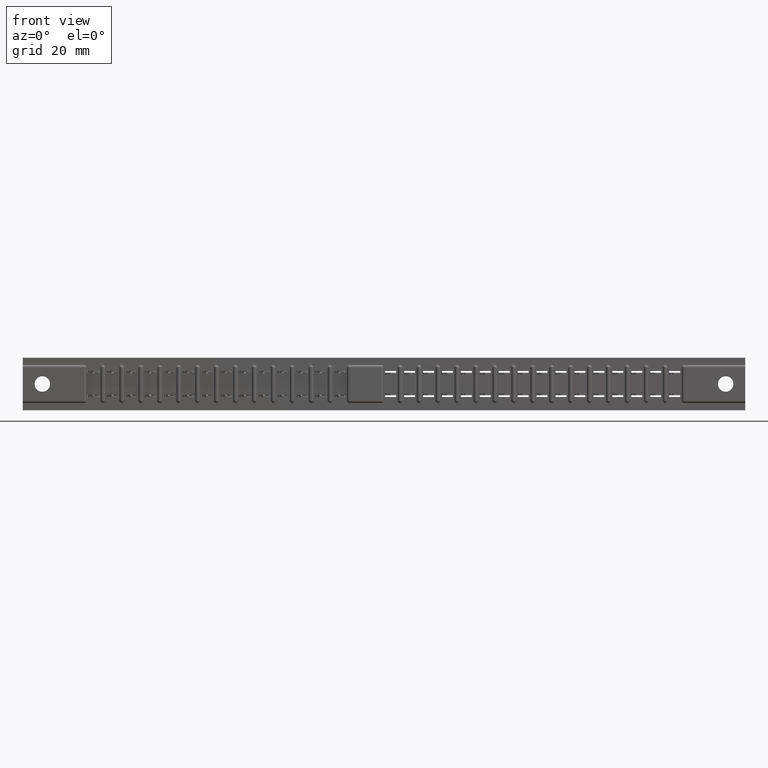
[diagram: clean part render]
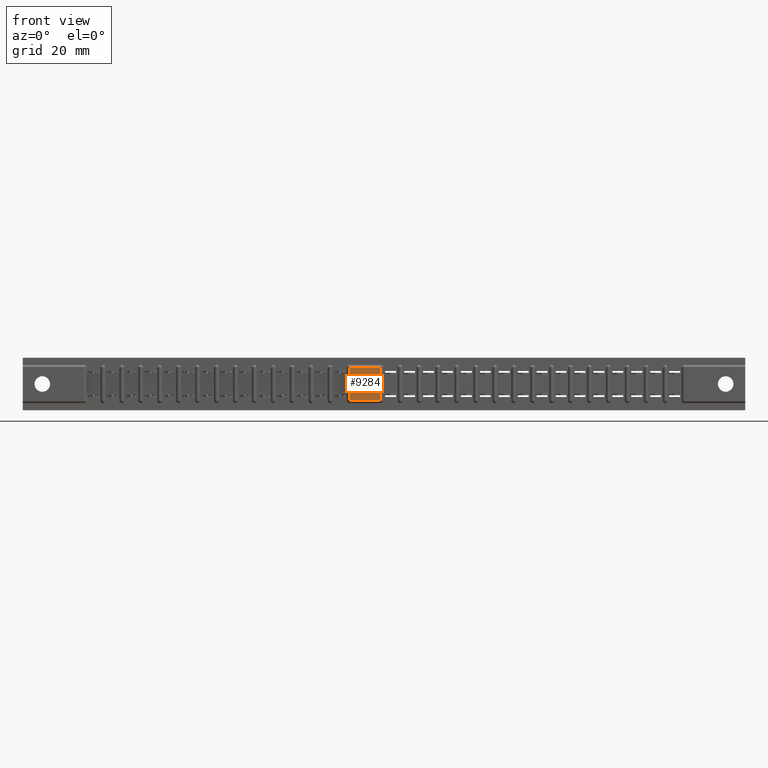
[diagram: same view with one face highlighted and labeled with its STEP entity id]
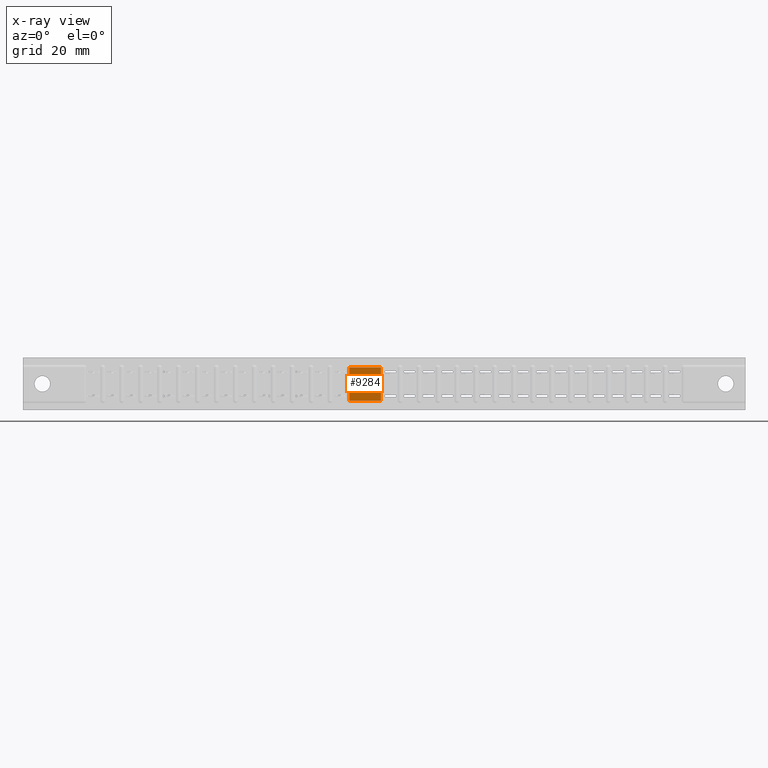
[diagram: x-ray of the same camera — body ghosted, the highlighted face saturated]
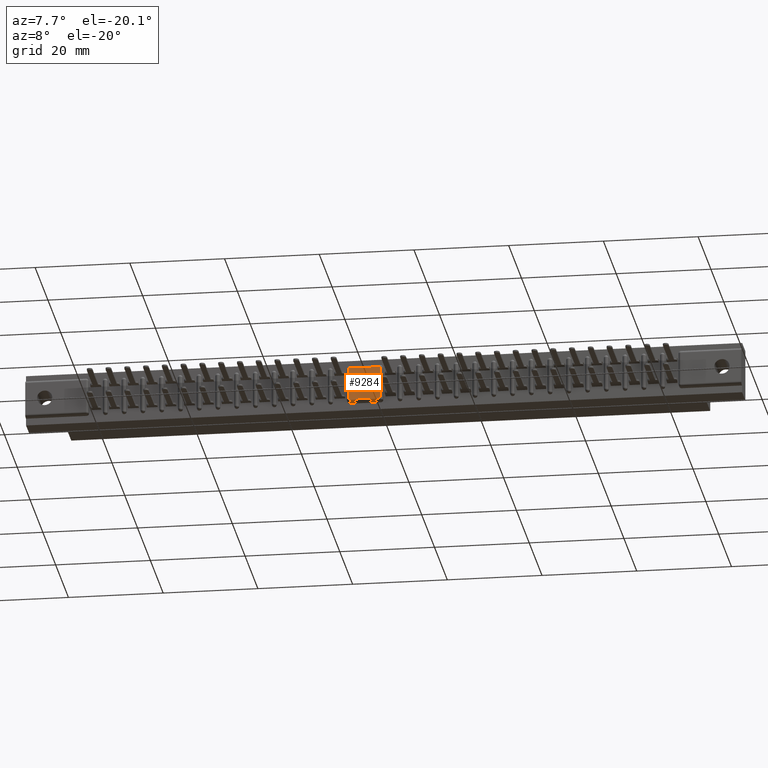
[diagram: same view with one face highlighted and labeled with its STEP entity id]
A machine part, front view. The second image highlights one B-rep face of the part: STEP entity #9284.
The next image is the same camera in x-ray: the body ghosted, the highlighted face saturated — about 0% of this face is hidden behind the body in this view.
A second angle (auxiliary view) of the same face is appended — the face is thin or edge-on in the first view.
In plain terms, the highlighted planar face has unit normal (0, -1, 0).
Its self-contained STEP definition (entity closure, byte-faithful):
#338 = VERTEX_POINT ( 'NONE', #10262 ) ;
#899 = CARTESIAN_POINT ( 'NONE',  ( -0.6603999999999774500, 0.0000000000000000000, 3.467100000000000700 ) ) ;
#1521 = VECTOR ( 'NONE', #13708, 1000.000000000000000 ) ;
#3090 = CARTESIAN_POINT ( 'NONE',  ( -7.264399999999977100, -0.0000000000000000000, 0.0000000000000000000 ) ) ;
#3193 = DIRECTION ( 'NONE',  ( 0.0000000000000000000, 0.0000000000000000000, -1.000000000000000000 ) ) ;
#5806 = EDGE_CURVE ( 'NONE', #21768, #338, #8438, .T. ) ;
#6469 = CARTESIAN_POINT ( 'NONE',  ( -7.264399999999977100, 0.0000000000000000000, -3.467100000000000700 ) ) ;
#6564 = EDGE_CURVE ( 'NONE', #338, #24239, #17695, .T. ) ;
#7244 = CARTESIAN_POINT ( 'NONE',  ( -0.6603999999999774500, 0.0000000000000000000, -3.467100000000000700 ) ) ;
#7878 = EDGE_CURVE ( 'NONE', #24239, #22667, #11113, .T. ) ;
#8438 = LINE ( 'NONE', #26894, #1521 ) ;
#9122 = ORIENTED_EDGE ( 'NONE', *, *, #15015, .T. ) ;
#9284 = ADVANCED_FACE ( 'NONE', ( #22438 ), #24686, .T. ) ;
#9912 = ORIENTED_EDGE ( 'NONE', *, *, #6564, .T. ) ;
#10234 = EDGE_LOOP ( 'NONE', ( #9122, #14965, #9912, #25349 ) ) ;
#10262 = CARTESIAN_POINT ( 'NONE',  ( -7.264399999999977100, 0.0000000000000000000, 3.467100000000000700 ) ) ;
#10664 = DIRECTION ( 'NONE',  ( 0.0000000000000000000, 0.0000000000000000000, 1.000000000000000000 ) ) ;
#11113 = LINE ( 'NONE', #18603, #22113 ) ;
#11487 = CARTESIAN_POINT ( 'NONE',  ( 0.0000000000000000000, 0.0000000000000000000, 0.0000000000000000000 ) ) ;
#13708 = DIRECTION ( 'NONE',  ( -1.000000000000000000, 0.0000000000000000000, 0.0000000000000000000 ) ) ;
#14965 = ORIENTED_EDGE ( 'NONE', *, *, #5806, .T. ) ;
#15015 = EDGE_CURVE ( 'NONE', #22667, #21768, #27075, .T. ) ;
#17695 = LINE ( 'NONE', #3090, #27723 ) ;
#18603 = CARTESIAN_POINT ( 'NONE',  ( 0.0000000000000000000, 0.0000000000000000000, -3.467100000000000700 ) ) ;
#19683 = CARTESIAN_POINT ( 'NONE',  ( -0.6603999999999774500, -0.0000000000000000000, 0.0000000000000000000 ) ) ;
#20323 = DIRECTION ( 'NONE',  ( 0.0000000000000000000, -0.0000000000000000000, -1.000000000000000000 ) ) ;
#21768 = VERTEX_POINT ( 'NONE', #899 ) ;
#22113 = VECTOR ( 'NONE', #25397, 1000.000000000000000 ) ;
#22438 = FACE_OUTER_BOUND ( 'NONE', #10234, .T. ) ;
#22667 = VERTEX_POINT ( 'NONE', #7244 ) ;
#24239 = VERTEX_POINT ( 'NONE', #6469 ) ;
#24686 = PLANE ( 'NONE',  #25846 ) ;
#25349 = ORIENTED_EDGE ( 'NONE', *, *, #7878, .T. ) ;
#25397 = DIRECTION ( 'NONE',  ( 1.000000000000000000, 0.0000000000000000000, 0.0000000000000000000 ) ) ;
#25846 = AXIS2_PLACEMENT_3D ( 'NONE', #11487, #26891, #20323 ) ;
#26891 = DIRECTION ( 'NONE',  ( 0.0000000000000000000, -1.000000000000000000, 0.0000000000000000000 ) ) ;
#26894 = CARTESIAN_POINT ( 'NONE',  ( 0.0000000000000000000, 0.0000000000000000000, 3.467100000000000700 ) ) ;
#27075 = LINE ( 'NONE', #19683, #28452 ) ;
#27723 = VECTOR ( 'NONE', #3193, 1000.000000000000000 ) ;
#28452 = VECTOR ( 'NONE', #10664, 1000.000000000000000 ) ;